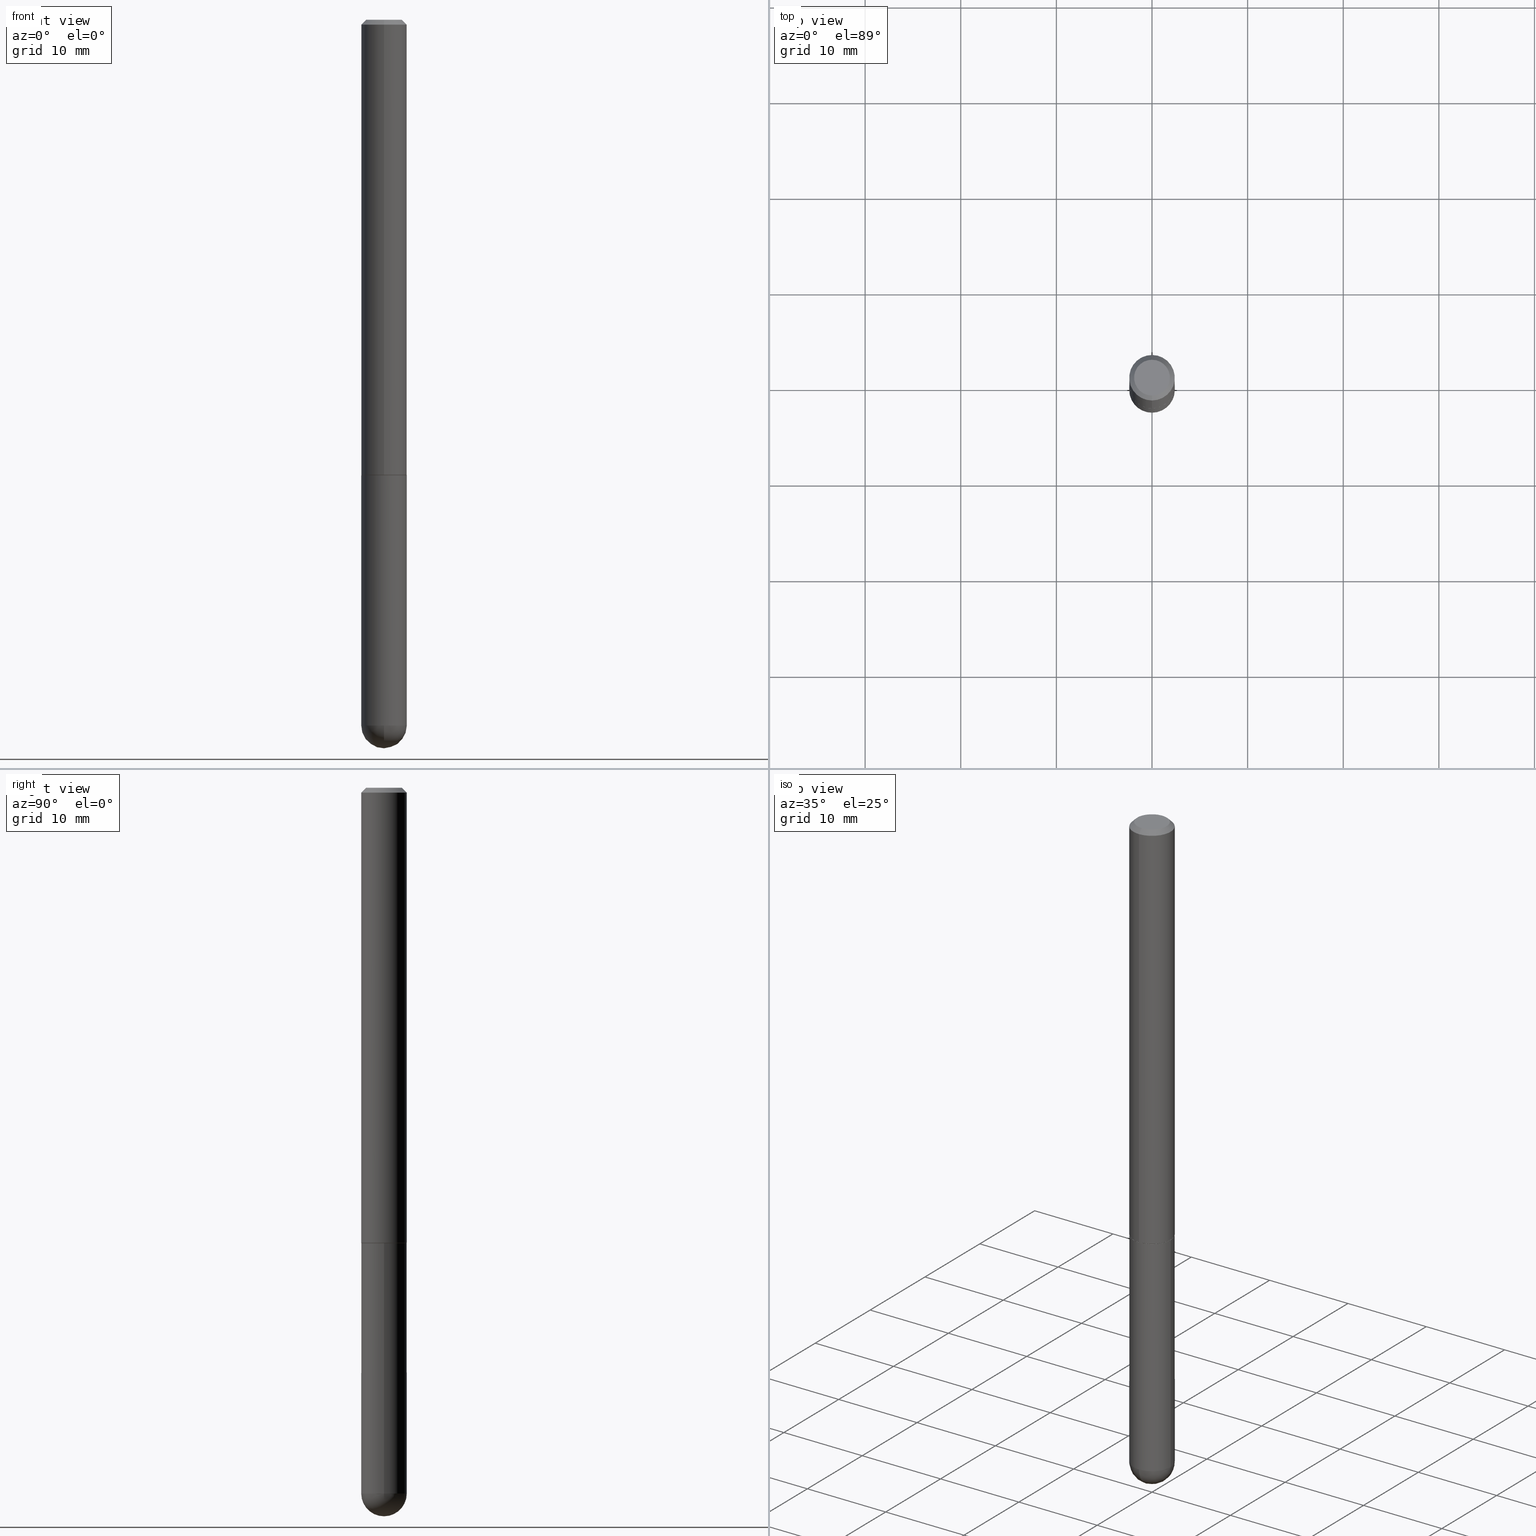
[diagram: canonical four-view strip — front | top / right | iso, engineering-drawing reading convention]
A machine part, canonical four-view strip (front | top / right | iso — engineering-drawing reading convention). The complete STEP part file that produces these views, byte-faithful:
ISO-10303-21;
HEADER;
FILE_DESCRIPTION (( 'STEP AP203' ),
    '1' );
FILE_NAME ('31969.STEP',
    '2024-02-21T17:21:11',
    ( '' ),
    ( '' ),
    'SwSTEP 2.0',
    'SolidWorks 2023',
    '' );
FILE_SCHEMA (( 'CONFIG_CONTROL_DESIGN' ));
ENDSEC;

DATA;
#1 = VERTEX_POINT ( 'NONE', #347 ) ;
#2 = DATE_AND_TIME ( #312, #263 ) ;
#3 = EDGE_LOOP ( 'NONE', ( #245, #236, #207, #387 ) ) ;
#4 = DESIGN_CONTEXT ( 'detailed design', #25, 'design' ) ;
#5 = PERSON_AND_ORGANIZATION ( #257, #300 ) ;
#6 = ORIENTED_EDGE ( 'NONE', *, *, #217, .F. ) ;
#7 = CARTESIAN_POINT ( 'NONE',  ( -6.431716872910807882E-16, -0.09375000000000011102, -0.01999999999999968817 ) ) ;
#8 = SECURITY_CLASSIFICATION_LEVEL ( 'unclassified' ) ;
#9 = ORIENTED_EDGE ( 'NONE', *, *, #269, .T. ) ;
#10 = CIRCLE ( 'NONE', #63, 0.07375000000000016265 ) ;
#11 = CIRCLE ( 'NONE', #394, 0.09375000000000024980 ) ;
#12 = CARTESIAN_POINT ( 'NONE',  ( 7.107143717975553234E-29, -1.014711764101289221E-14, -2.906250000000000000 ) ) ;
#13 = APPROVAL_ROLE ( '' ) ;
#14 = ORIENTED_EDGE ( 'NONE', *, *, #82, .T. ) ;
#15 = CARTESIAN_POINT ( 'NONE',  ( 4.585254011597131119E-29, -6.546527510330898707E-15, -1.875000000000000000 ) ) ;
#16 = CARTESIAN_POINT ( 'NONE',  ( 4.892014791988263253E-31, -6.981420095164085175E-17, -0.02000000000000001776 ) ) ;
#17 = ADVANCED_FACE ( 'NONE', ( #60 ), #179, .T. ) ;
#18 = CIRCLE ( 'NONE', #358, 0.09375000000000026368 ) ;
#19 = DIRECTION ( 'NONE',  ( 2.446007395994129455E-29, -3.490710047582039432E-15, -1.000000000000000000 ) ) ;
#20 = EDGE_CURVE ( 'NONE', #38, #144, #151, .T. ) ;
#21 = DIRECTION ( 'NONE',  ( -1.000000000000000000, 6.982962677686265133E-15, -4.883557194083112901E-29 ) ) ;
#22 = DIRECTION ( 'NONE',  ( -2.446007395994129735E-29, 3.490710047582039432E-15, 1.000000000000000000 ) ) ;
#23 = DIRECTION ( 'NONE',  ( 1.000000000000000000, -6.982962677686265922E-15, 4.883557194083112340E-29 ) ) ;
#24 = AXIS2_PLACEMENT_3D ( 'NONE', #362, #182, #57 ) ;
#25 = APPLICATION_CONTEXT ( 'configuration controlled 3d designs of mechanical parts and assemblies' ) ;
#26 = ORIENTED_EDGE ( 'NONE', *, *, #37, .T. ) ;
#27 =( NAMED_UNIT ( * ) SI_UNIT ( $, .STERADIAN. ) SOLID_ANGLE_UNIT ( ) );
#28 = DIRECTION ( 'NONE',  ( -6.982962677686266711E-15, -1.000000000000000000, 3.505871591869136121E-15 ) ) ;
#29 = EDGE_LOOP ( 'NONE', ( #248, #162, #147, #380 ) ) ;
#30 = CARTESIAN_POINT ( 'NONE',  ( 6.546527510331333567E-16, 0.09374999999999346356, -1.875000000000000444 ) ) ;
#31 = ORIENTED_EDGE ( 'NONE', *, *, #241, .F. ) ;
#32 = COORDINATED_UNIVERSAL_TIME_OFFSET ( 5, 0, .BEHIND. ) ;
#33 = AXIS2_PLACEMENT_3D ( 'NONE', #84, #252, #119 ) ;
#34 = AXIS2_PLACEMENT_3D ( 'NONE', #407, #204, #76 ) ;
#35 = CARTESIAN_POINT ( 'NONE',  ( 7.107143717975553234E-29, -1.014711764101289221E-14, -2.906250000000000000 ) ) ;
#36 = COORDINATED_UNIVERSAL_TIME_OFFSET ( 5, 0, .BEHIND. ) ;
#37 = EDGE_CURVE ( 'NONE', #283, #98, #10, .T. ) ;
#38 = VERTEX_POINT ( 'NONE', #351 ) ;
#39 = CARTESIAN_POINT ( 'NONE',  ( 4.585254011597131119E-29, -6.546527510330898707E-15, -1.875000000000000000 ) ) ;
#40 = APPROVAL_STATUS ( 'not_yet_approved' ) ;
#41 = DIRECTION ( 'NONE',  ( -2.446007395994129455E-29, 3.490710047582039432E-15, 1.000000000000000000 ) ) ;
#42 = ORIENTED_EDGE ( 'NONE', *, *, #100, .F. ) ;
#43 = CARTESIAN_POINT ( 'NONE',  ( 5.848231242562257836E-16, 0.07375000000000016265, -3.556725360119918947E-16 ) ) ;
#44 = EDGE_CURVE ( 'NONE', #124, #187, #64, .T. ) ;
#45 = LINE ( 'NONE', #200, #188 ) ;
#46 = DIRECTION ( 'NONE',  ( -2.446007395994129455E-29, 3.490710047582039432E-15, 1.000000000000000000 ) ) ;
#47 = VECTOR ( 'NONE', #22, 39.37007874015748143 ) ;
#48 = ADVANCED_FACE ( 'NONE', ( #141 ), #274, .T. ) ;
#49 =( GEOMETRIC_REPRESENTATION_CONTEXT ( 3 ) GLOBAL_UNCERTAINTY_ASSIGNED_CONTEXT ( ( #315 ) ) GLOBAL_UNIT_ASSIGNED_CONTEXT ( ( #53, #404, #27 ) ) REPRESENTATION_CONTEXT ( 'NONE', 'WORKASPACE' ) );
#50 = CARTESIAN_POINT ( 'NONE',  ( 6.776023940061668108E-29, -1.062130000915294250E-14, -2.906250000000000000 ) ) ;
#51 = DIRECTION ( 'NONE',  ( 2.446007395994129455E-29, -3.490710047582039432E-15, -1.000000000000000000 ) ) ;
#52 = ORIENTED_EDGE ( 'NONE', *, *, #105, .T. ) ;
#53 =( CONVERSION_BASED_UNIT ( 'INCH', #176 ) LENGTH_UNIT ( ) NAMED_UNIT ( #75 ) );
#54 = CIRCLE ( 'NONE', #350, 0.09274999999999999911 ) ;
#55 = CC_DESIGN_PERSON_AND_ORGANIZATION_ASSIGNMENT ( #155, #320, ( #335 ) ) ;
#56 = LOCAL_TIME ( 12, 21, 11.00000000000000000, #88 ) ;
#57 = DIRECTION ( 'NONE',  ( -6.982962677686265922E-15, -1.000000000000000000, 3.490710047582039432E-15 ) ) ;
#58 = VERTEX_POINT ( 'NONE', #228 ) ;
#59 = ORIENTED_EDGE ( 'NONE', *, *, #37, .F. ) ;
#60 = FACE_OUTER_BOUND ( 'NONE', #93, .T. ) ;
#61 = CALENDAR_DATE ( 2024, 21, 2 ) ;
#62 = EDGE_LOOP ( 'NONE', ( #378, #308 ) ) ;
#63 = AXIS2_PLACEMENT_3D ( 'NONE', #343, #218, #210 ) ;
#64 = LINE ( 'NONE', #304, #47 ) ;
#65 = ORIENTED_EDGE ( 'NONE', *, *, #293, .F. ) ;
#66 = DIRECTION ( 'NONE',  ( 1.000000000000000000, -6.982962677686263555E-15, 0.000000000000000000 ) ) ;
#67 = PERSON_AND_ORGANIZATION_ROLE ( 'design_owner' ) ;
#68 = DIRECTION ( 'NONE',  ( -2.446007395994129455E-29, 3.490710047582039432E-15, 1.000000000000000000 ) ) ;
#69 = ADVANCED_FACE ( 'NONE', ( #195 ), #136, .T. ) ;
#70 = AXIS2_PLACEMENT_3D ( 'NONE', #184, #120, #242 ) ;
#71 = DIRECTION ( 'NONE',  ( -7.105427357601001070E-15, -1.000000000000000000, 0.000000000000000000 ) ) ;
#72 = DIRECTION ( 'NONE',  ( -6.982962677686266711E-15, -1.000000000000000000, 3.505871591869136121E-15 ) ) ;
#73 = EDGE_CURVE ( 'NONE', #283, #159, #45, .T. ) ;
#74 = CIRCLE ( 'NONE', #34, 0.07375000000000016265 ) ;
#75 = DIMENSIONAL_EXPONENTS ( 1.000000000000000000, 0.000000000000000000, 0.000000000000000000, 0.000000000000000000, 0.000000000000000000, 0.000000000000000000, 0.000000000000000000 ) ;
#76 = DIRECTION ( 'NONE',  ( -6.982962677686265922E-15, -1.000000000000000000, 3.490710047582040221E-15 ) ) ;
#77 = APPROVAL ( #190, 'UNSPECIFIED' ) ;
#78 = CARTESIAN_POINT ( 'NONE',  ( 7.107143717975553234E-29, -1.014711764101289221E-14, -2.906250000000000000 ) ) ;
#79 = CARTESIAN_POINT ( 'NONE',  ( 5.149934974793632743E-16, 0.07375000000000016265, -3.065562010105839588E-16 ) ) ;
#80 = DIRECTION ( 'NONE',  ( 6.982962677686266711E-15, 1.000000000000000000, -3.505871591869136121E-15 ) ) ;
#81 = VERTEX_POINT ( 'NONE', #104 ) ;
#82 = EDGE_CURVE ( 'NONE', #183, #292, #18, .T. ) ;
#83 = CARTESIAN_POINT ( 'NONE',  ( -0.09374999999999998612, 6.661338147750938256E-16, -4.611501647113973295E-30 ) ) ;
#84 = CARTESIAN_POINT ( 'NONE',  ( 6.776023940061668108E-29, -1.062130000915294250E-14, -2.906250000000000000 ) ) ;
#85 = AXIS2_PLACEMENT_3D ( 'NONE', #78, #327, #391 ) ;
#86 = CARTESIAN_POINT ( 'NONE',  ( 6.590283874175386700E-16, 0.09274999999999346267, -1.875000000000000444 ) ) ;
#87 = ORIENTED_EDGE ( 'NONE', *, *, #20, .T. ) ;
#88 = COORDINATED_UNIVERSAL_TIME_OFFSET ( 5, 0, .BEHIND. ) ;
#89 = ORIENTED_EDGE ( 'NONE', *, *, #322, .F. ) ;
#90 = PERSON_AND_ORGANIZATION ( #257, #300 ) ;
#91 = VERTEX_POINT ( 'NONE', #288 ) ;
#92 = APPROVAL_DATE_TIME ( #390, #355 ) ;
#93 = EDGE_LOOP ( 'NONE', ( #214, #382, #89, #31 ) ) ;
#94 = VECTOR ( 'NONE', #268, 39.37007874015748143 ) ;
#95 = APPROVAL_PERSON_ORGANIZATION ( #90, #323, #316 ) ;
#96 = CARTESIAN_POINT ( 'NONE',  ( 6.546527510330881944E-16, 0.09374999999999997224, -0.02000000000000034736 ) ) ;
#97 = SHAPE_DEFINITION_REPRESENTATION ( #109, #369 ) ;
#98 = VERTEX_POINT ( 'NONE', #43 ) ;
#99 = DIRECTION ( 'NONE',  ( -6.982962677686265922E-15, -1.000000000000000000, 2.945388672414299892E-15 ) ) ;
#100 = EDGE_CURVE ( 'NONE', #159, #187, #234, .T. ) ;
#101 = DIRECTION ( 'NONE',  ( -2.446007395994129455E-29, 3.490710047582039432E-15, 1.000000000000000000 ) ) ;
#102 = CARTESIAN_POINT ( 'NONE',  ( -6.476697883553553415E-16, -0.09275000000000654943, -1.874999999999999778 ) ) ;
#103 = LOCAL_TIME ( 12, 21, 11.00000000000000000, #348 ) ;
#104 = CARTESIAN_POINT ( 'NONE',  ( -0.09375000000000001388, -7.680688760896801533E-15, -1.875000000000000000 ) ) ;
#105 = EDGE_CURVE ( 'NONE', #1, #290, #349, .T. ) ;
#106 = CARTESIAN_POINT ( 'NONE',  ( 7.009295232622052523E-29, -1.094288585279848383E-14, -3.000000000000000444 ) ) ;
#107 = AXIS2_PLACEMENT_3D ( 'NONE', #389, #229, #360 ) ;
#108 = VECTOR ( 'NONE', #280, 39.37007874015748143 ) ;
#109 = PRODUCT_DEFINITION_SHAPE ( 'NONE', 'NONE',  #203 ) ;
#110 = EDGE_CURVE ( 'NONE', #81, #91, #272, .T. ) ;
#111 = DIRECTION ( 'NONE',  ( 2.438088387897960049E-29, -3.491481338843145188E-15, -1.000000000000000000 ) ) ;
#112 = MECHANICAL_CONTEXT ( 'NONE', #265, 'mechanical' ) ;
#113 = CONICAL_SURFACE ( 'NONE', #273, 0.09375000000000004163, 0.7853981633974471688 ) ;
#114 = DIRECTION ( 'NONE',  ( 1.000000000000000000, -6.982962677686266711E-15, 4.876176775795935793E-29 ) ) ;
#115 = ADVANCED_FACE ( 'NONE', ( #199 ), #329, .T. ) ;
#116 = ORIENTED_EDGE ( 'NONE', *, *, #160, .F. ) ;
#117 = FACE_OUTER_BOUND ( 'NONE', #62, .T. ) ;
#118 = DIRECTION ( 'NONE',  ( -6.982962677686265922E-15, -1.000000000000000000, 2.945388672414299892E-15 ) ) ;
#119 = DIRECTION ( 'NONE',  ( 6.982962677686265133E-15, 1.000000000000000000, -5.827942386483744967E-15 ) ) ;
#120 = DIRECTION ( 'NONE',  ( 0.000000000000000000, 0.000000000000000000, 1.000000000000000000 ) ) ;
#121 = CARTESIAN_POINT ( 'NONE',  ( -6.476697883553553415E-16, -0.09275000000000654943, -1.874999999999999778 ) ) ;
#122 = ORIENTED_EDGE ( 'NONE', *, *, #368, .F. ) ;
#123 = APPROVAL_PERSON_ORGANIZATION ( #196, #77, #284 ) ;
#124 = VERTEX_POINT ( 'NONE', #169 ) ;
#125 = CALENDAR_DATE ( 2024, 21, 2 ) ;
#126 = EDGE_LOOP ( 'NONE', ( #59, #345, #353, #287 ) ) ;
#127 = FACE_OUTER_BOUND ( 'NONE', #154, .T. ) ;
#128 = DATE_AND_TIME ( #289, #246 ) ;
#129 = ORIENTED_EDGE ( 'NONE', *, *, #269, .F. ) ;
#130 = CC_DESIGN_PERSON_AND_ORGANIZATION_ASSIGNMENT ( #303, #67, ( #201 ) ) ;
#131 = CARTESIAN_POINT ( 'NONE',  ( 4.586263867488992587E-29, -6.545081339216325069E-15, -1.875000000000000000 ) ) ;
#132 = DIRECTION ( 'NONE',  ( 1.000000000000000000, -6.982962677686261189E-15, 0.000000000000000000 ) ) ;
#133 = DIRECTION ( 'NONE',  ( -2.445468806185136597E-29, 3.491481338843145583E-15, 1.000000000000000000 ) ) ;
#134 = CIRCLE ( 'NONE', #180, 0.09375000000000024980 ) ;
#135 = CC_DESIGN_SECURITY_CLASSIFICATION ( #375, ( #335 ) ) ;
#136 = CYLINDRICAL_SURFACE ( 'NONE', #107, 0.09375000000000013878 ) ;
#137 = CIRCLE ( 'NONE', #85, 0.09374999999999998612 ) ;
#138 = CC_DESIGN_APPROVAL ( #323, ( #375 ) ) ;
#139 = ADVANCED_FACE ( 'NONE', ( #198 ), #152, .T. ) ;
#140 = CC_DESIGN_PERSON_AND_ORGANIZATION_ASSIGNMENT ( #250, #148, ( #375 ) ) ;
#141 = FACE_OUTER_BOUND ( 'NONE', #310, .T. ) ;
#142 = AXIS2_PLACEMENT_3D ( 'NONE', #30, #111, #344 ) ;
#143 = DIRECTION ( 'NONE',  ( 6.982962677686265133E-15, 1.000000000000000000, -5.827942386483744967E-15 ) ) ;
#144 = VERTEX_POINT ( 'NONE', #328 ) ;
#145 = DIRECTION ( 'NONE',  ( 6.982962677686265922E-15, 1.000000000000000000, -3.490710047582039432E-15 ) ) ;
#146 = CARTESIAN_POINT ( 'NONE',  ( -6.661338147750251947E-16, -0.09375000000001050549, -2.906249999999999556 ) ) ;
#147 = ORIENTED_EDGE ( 'NONE', *, *, #231, .T. ) ;
#148 = PERSON_AND_ORGANIZATION_ROLE ( 'classification_officer' ) ;
#149 = ORIENTED_EDGE ( 'NONE', *, *, #73, .F. ) ;
#150 = ADVANCED_FACE ( 'NONE', ( #317 ), #232, .T. ) ;
#151 = CIRCLE ( 'NONE', #330, 0.09374999999999998612 ) ;
#152 = CONICAL_SURFACE ( 'NONE', #171, 0.09274999999999999911, 0.7853981633975336552 ) ;
#153 = PERSON_AND_ORGANIZATION_ROLE ( 'creator' ) ;
#154 = EDGE_LOOP ( 'NONE', ( #403, #52, #373, #338 ) ) ;
#155 = PERSON_AND_ORGANIZATION ( #257, #300 ) ;
#156 = ORIENTED_EDGE ( 'NONE', *, *, #105, .F. ) ;
#157 = CARTESIAN_POINT ( 'NONE',  ( 0.000000000000000000, 0.000000000000000000, 0.000000000000000000 ) ) ;
#158 = COORDINATED_UNIVERSAL_TIME_OFFSET ( 5, 0, .BEHIND. ) ;
#159 = VERTEX_POINT ( 'NONE', #7 ) ;
#160 = EDGE_CURVE ( 'NONE', #144, #292, #402, .T. ) ;
#161 = DIRECTION ( 'NONE',  ( -4.937700262164969294E-15, -0.7071067811866054154, 0.7071067811864896191 ) ) ;
#162 = ORIENTED_EDGE ( 'NONE', *, *, #213, .T. ) ;
#163 = AXIS2_PLACEMENT_3D ( 'NONE', #131, #68, #99 ) ;
#164 = CIRCLE ( 'NONE', #331, 0.09374999999999998612 ) ;
#165 = CARTESIAN_POINT ( 'NONE',  ( 0.000000000000000000, 0.000000000000000000, 0.000000000000000000 ) ) ;
#166 = EDGE_LOOP ( 'NONE', ( #281, #170, #42, #370 ) ) ;
#167 = PLANE ( 'NONE',  #24 ) ;
#168 = DIRECTION ( 'NONE',  ( -2.446007395994129455E-29, 3.490710047582039432E-15, 1.000000000000000000 ) ) ;
#169 = CARTESIAN_POINT ( 'NONE',  ( 6.661338147751182803E-16, 0.09374999999999368561, -1.874000000000000332 ) ) ;
#170 = ORIENTED_EDGE ( 'NONE', *, *, #44, .T. ) ;
#171 = AXIS2_PLACEMENT_3D ( 'NONE', #361, #393, #392 ) ;
#172 = CC_DESIGN_DATE_AND_TIME_ASSIGNMENT ( #379, #216, ( #375 ) ) ;
#173 = CIRCLE ( 'NONE', #411, 0.09375000000000004163 ) ;
#174 = DIRECTION ( 'NONE',  ( 1.000000000000000000, -6.982962677686263555E-15, 0.000000000000000000 ) ) ;
#175 = CC_DESIGN_DATE_AND_TIME_ASSIGNMENT ( #247, #352, ( #203 ) ) ;
#176 = LENGTH_MEASURE_WITH_UNIT ( LENGTH_MEASURE( 0.02539999999999999897 ), #364 );
#177 = CARTESIAN_POINT ( 'NONE',  ( 7.107143717975553234E-29, -1.014711764101289221E-14, -2.906250000000000000 ) ) ;
#178 = CLOSED_SHELL ( 'NONE', ( #139, #115, #337, #150, #69, #185, #260, #299 ) ) ;
#179 = SPHERICAL_SURFACE ( 'NONE', #33, 0.09375000000000026368 ) ;
#180 = AXIS2_PLACEMENT_3D ( 'NONE', #319, #41, #294 ) ;
#181 = ORIENTED_EDGE ( 'NONE', *, *, #20, .F. ) ;
#182 = DIRECTION ( 'NONE',  ( -2.446007395994129174E-29, 3.490710047582039432E-15, 1.000000000000000000 ) ) ;
#183 = VERTEX_POINT ( 'NONE', #106 ) ;
#184 = CARTESIAN_POINT ( 'NONE',  ( 0.000000000000000000, 0.000000000000000000, 0.000000000000000000 ) ) ;
#185 = ADVANCED_FACE ( 'NONE', ( #127 ), #219, .T. ) ;
#186 = PRODUCT_RELATED_PRODUCT_CATEGORY ( 'detail', '', ( #201 ) ) ;
#187 = VERTEX_POINT ( 'NONE', #385 ) ;
#188 = VECTOR ( 'NONE', #359, 39.37007874015748143 ) ;
#189 = AXIS2_PLACEMENT_3D ( 'NONE', #165, #46, #261 ) ;
#190 = APPROVAL_STATUS ( 'not_yet_approved' ) ;
#191 = ORIENTED_EDGE ( 'NONE', *, *, #194, .T. ) ;
#192 = DIRECTION ( 'NONE',  ( 1.000000000000000000, -6.982962677686261189E-15, 0.000000000000000000 ) ) ;
#193 = APPROVAL_DATE_TIME ( #2, #77 ) ;
#194 = EDGE_CURVE ( 'NONE', #98, #187, #356, .T. ) ;
#195 = FACE_OUTER_BOUND ( 'NONE', #29, .T. ) ;
#196 = PERSON_AND_ORGANIZATION ( #257, #300 ) ;
#197 = ORIENTED_EDGE ( 'NONE', *, *, #110, .F. ) ;
#198 = FACE_OUTER_BOUND ( 'NONE', #3, .T. ) ;
#199 = FACE_OUTER_BOUND ( 'NONE', #166, .T. ) ;
#200 = CARTESIAN_POINT ( 'NONE',  ( -6.431716872910807882E-16, -0.09375000000000011102, -0.01999999999999968817 ) ) ;
#201 = PRODUCT ( '31969', '31969', '', ( #112 ) ) ;
#202 = AXIS2_PLACEMENT_3D ( 'NONE', #224, #168, #254 ) ;
#203 = PRODUCT_DEFINITION ( 'UNKNOWN', '', #335, #4 ) ;
#204 = DIRECTION ( 'NONE',  ( -2.446007395994129455E-29, 3.490710047582039432E-15, 1.000000000000000000 ) ) ;
#205 = VECTOR ( 'NONE', #208, 39.37007874015748143 ) ;
#206 = LINE ( 'NONE', #271, #94 ) ;
#207 = ORIENTED_EDGE ( 'NONE', *, *, #251, .F. ) ;
#208 = DIRECTION ( 'NONE',  ( -2.445468806185136877E-29, 3.491481338843145188E-15, 1.000000000000000000 ) ) ;
#209 = AXIS2_PLACEMENT_3D ( 'NONE', #39, #133, #192 ) ;
#210 = DIRECTION ( 'NONE',  ( -6.982962677686265922E-15, -1.000000000000000000, 3.490710047582040221E-15 ) ) ;
#211 = AXIS2_PLACEMENT_3D ( 'NONE', #15, #291, #132 ) ;
#212 = DIRECTION ( 'NONE',  ( -2.445468806185136597E-29, 3.491481338843145583E-15, 1.000000000000000000 ) ) ;
#213 = EDGE_CURVE ( 'NONE', #124, #58, #134, .T. ) ;
#214 = ORIENTED_EDGE ( 'NONE', *, *, #82, .F. ) ;
#215 = EDGE_LOOP ( 'NONE', ( #149, #256, #191, #221 ) ) ;
#216 = DATE_TIME_ROLE ( 'classification_date' ) ;
#217 = EDGE_CURVE ( 'NONE', #91, #81, #235, .T. ) ;
#218 = DIRECTION ( 'NONE',  ( -2.446007395994129455E-29, 3.490710047582039432E-15, 1.000000000000000000 ) ) ;
#219 = CONICAL_SURFACE ( 'NONE', #202, 0.09274999999999999911, 0.7853981633975336552 ) ;
#220 = PERSON_AND_ORGANIZATION ( #257, #300 ) ;
#221 = ORIENTED_EDGE ( 'NONE', *, *, #276, .T. ) ;
#222 = MANIFOLD_SOLID_BREP ( 'Body-Move/Copy2[1]', #262 ) ;
#223 = DIRECTION ( 'NONE',  ( -2.445468806185136597E-29, 3.491481338843145583E-15, 1.000000000000000000 ) ) ;
#224 = CARTESIAN_POINT ( 'NONE',  ( 4.586263867488992587E-29, -6.545081339216325069E-15, -1.875000000000000000 ) ) ;
#225 = DIRECTION ( 'NONE',  ( -6.982962677686265133E-15, -1.000000000000000000, 2.913971193241872878E-15 ) ) ;
#226 = LINE ( 'NONE', #102, #307 ) ;
#227 = EDGE_CURVE ( 'NONE', #290, #58, #226, .T. ) ;
#228 = CARTESIAN_POINT ( 'NONE',  ( -6.546527510330432293E-16, -0.09375000000000678624, -1.873999999999999666 ) ) ;
#229 = DIRECTION ( 'NONE',  ( -2.446007395994129455E-29, 3.490710047582039432E-15, 1.000000000000000000 ) ) ;
#230 = DIRECTION ( 'NONE',  ( -2.446007395994129735E-29, 3.490710047582039432E-15, 1.000000000000000000 ) ) ;
#231 = EDGE_CURVE ( 'NONE', #58, #159, #332, .T. ) ;
#232 = CONICAL_SURFACE ( 'NONE', #244, 0.09375000000000004163, 0.7853981633974471688 ) ;
#233 = CYLINDRICAL_SURFACE ( 'NONE', #398, 0.09374999999999998612 ) ;
#234 = CIRCLE ( 'NONE', #340, 0.09375000000000004163 ) ;
#235 = CIRCLE ( 'NONE', #211, 0.09375000000000001388 ) ;
#236 = ORIENTED_EDGE ( 'NONE', *, *, #266, .T. ) ;
#237 = ORIENTED_EDGE ( 'NONE', *, *, #306, .F. ) ;
#238 = FACE_OUTER_BOUND ( 'NONE', #249, .T. ) ;
#239 = CARTESIAN_POINT ( 'NONE',  ( 0.09374999999999998612, -9.001475326704983750E-15, -2.906250000000000000 ) ) ;
#240 = ORIENTED_EDGE ( 'NONE', *, *, #322, .T. ) ;
#241 = EDGE_CURVE ( 'NONE', #292, #295, #137, .T. ) ;
#242 = DIRECTION ( 'NONE',  ( 1.000000000000000000, 0.000000000000000000, 0.000000000000000000 ) ) ;
#243 = CARTESIAN_POINT ( 'NONE',  ( 4.586263867488992587E-29, -6.545081339216325069E-15, -1.875000000000000000 ) ) ;
#244 = AXIS2_PLACEMENT_3D ( 'NONE', #297, #19, #354 ) ;
#245 = ORIENTED_EDGE ( 'NONE', *, *, #293, .T. ) ;
#246 = LOCAL_TIME ( 12, 21, 11.00000000000000000, #158 ) ;
#247 = DATE_AND_TIME ( #125, #103 ) ;
#248 = ORIENTED_EDGE ( 'NONE', *, *, #44, .F. ) ;
#249 = EDGE_LOOP ( 'NONE', ( #237, #14, #116, #181 ) ) ;
#250 = PERSON_AND_ORGANIZATION ( #257, #300 ) ;
#251 = EDGE_CURVE ( 'NONE', #58, #124, #11, .T. ) ;
#252 = DIRECTION ( 'NONE',  ( -1.000000000000000000, 6.982962677686265133E-15, -4.883557194083112901E-29 ) ) ;
#253 = APPROVAL_STATUS ( 'not_yet_approved' ) ;
#254 = DIRECTION ( 'NONE',  ( -6.982962677686265922E-15, -1.000000000000000000, 2.945388672414299892E-15 ) ) ;
#255 = APPROVAL_DATE_TIME ( #128, #323 ) ;
#256 = ORIENTED_EDGE ( 'NONE', *, *, #301, .F. ) ;
#257 = PERSON ( 'UNSPECIFIED', 'UNSPECIFIED', 'UNSPECIFIED', ('UNSPECIFIED'), ('UNSPECIFIED'), ('UNSPECIFIED') ) ;
#258 = DIRECTION ( 'NONE',  ( 1.000000000000000000, -6.982962677686266711E-15, 4.876176775795935793E-29 ) ) ;
#259 = CARTESIAN_POINT ( 'NONE',  ( 6.776023940061668108E-29, -1.062130000915294250E-14, -2.906250000000000000 ) ) ;
#260 = ADVANCED_FACE ( 'NONE', ( #357 ), #167, .F. ) ;
#261 = DIRECTION ( 'NONE',  ( -6.982962677686266711E-15, -1.000000000000000000, 3.490710047582039826E-15 ) ) ;
#262 = CLOSED_SHELL ( 'NONE', ( #48, #410, #17, #377, #333 ) ) ;
#263 = LOCAL_TIME ( 12, 21, 11.00000000000000000, #36 ) ;
#264 = DIRECTION ( 'NONE',  ( -2.446007395994129455E-29, 3.490710047582039432E-15, 1.000000000000000000 ) ) ;
#265 = APPLICATION_CONTEXT ( 'configuration controlled 3d designs of mechanical parts and assemblies' ) ;
#266 = EDGE_CURVE ( 'NONE', #1, #124, #374, .T. ) ;
#267 = VECTOR ( 'NONE', #324, 39.37007874015748143 ) ;
#268 = DIRECTION ( 'NONE',  ( -2.445468806185136877E-29, 3.491481338843145188E-15, 1.000000000000000000 ) ) ;
#269 = EDGE_CURVE ( 'NONE', #144, #81, #408, .T. ) ;
#270 = CARTESIAN_POINT ( 'NONE',  ( -6.546527510330884902E-16, -0.09375000000000013878, 3.272540669608167268E-16 ) ) ;
#271 = CARTESIAN_POINT ( 'NONE',  ( 0.09374999999999998612, -6.546527510330874055E-16, 4.571415727308689105E-30 ) ) ;
#272 = CIRCLE ( 'NONE', #209, 0.09375000000000001388 ) ;
#273 = AXIS2_PLACEMENT_3D ( 'NONE', #371, #51, #80 ) ;
#274 = CYLINDRICAL_SURFACE ( 'NONE', #313, 0.09374999999999998612 ) ;
#275 = CARTESIAN_POINT ( 'NONE',  ( 6.776023940061668108E-29, -1.062130000915294250E-14, -2.906250000000000000 ) ) ;
#276 = EDGE_CURVE ( 'NONE', #187, #159, #173, .T. ) ;
#277 = DIRECTION ( 'NONE',  ( -2.446007395994129455E-29, 3.490710047582039432E-15, 1.000000000000000000 ) ) ;
#278 = DIRECTION ( 'NONE',  ( -2.445468806185136597E-29, 3.491481338843145583E-15, 1.000000000000000000 ) ) ;
#279 = DIRECTION ( 'NONE',  ( 2.446007395994129174E-29, -3.490710047582039432E-15, -1.000000000000000000 ) ) ;
#280 = DIRECTION ( 'NONE',  ( 5.024295867788490741E-15, 0.7071067811866103003, 0.7071067811864847341 ) ) ;
#281 = ORIENTED_EDGE ( 'NONE', *, *, #251, .T. ) ;
#282 = CC_DESIGN_APPROVAL ( #77, ( #203 ) ) ;
#283 = VERTEX_POINT ( 'NONE', #405 ) ;
#284 = APPROVAL_ROLE ( '' ) ;
#285 = DIRECTION ( 'NONE',  ( 1.000000000000000000, -6.982962677686263555E-15, 0.000000000000000000 ) ) ;
#286 = PERSON_AND_ORGANIZATION ( #257, #300 ) ;
#287 = ORIENTED_EDGE ( 'NONE', *, *, #194, .F. ) ;
#288 = CARTESIAN_POINT ( 'NONE',  ( 0.09375000000000001388, -7.201180261363985422E-15, -1.875000000000000000 ) ) ;
#289 = CALENDAR_DATE ( 2024, 21, 2 ) ;
#290 = VERTEX_POINT ( 'NONE', #121 ) ;
#291 = DIRECTION ( 'NONE',  ( -2.445468806185136597E-29, 3.491481338843145583E-15, 1.000000000000000000 ) ) ;
#292 = VERTEX_POINT ( 'NONE', #146 ) ;
#293 = EDGE_CURVE ( 'NONE', #290, #1, #54, .T. ) ;
#294 = DIRECTION ( 'NONE',  ( -6.982962677686265133E-15, -1.000000000000000000, 2.913971193241872878E-15 ) ) ;
#295 = VERTEX_POINT ( 'NONE', #239 ) ;
#296 = DIRECTION ( 'NONE',  ( -1.000000000000000000, 7.105427357601001070E-15, -4.926315508542082329E-29 ) ) ;
#297 = CARTESIAN_POINT ( 'NONE',  ( 4.892014791988263253E-31, -6.981420095164085175E-17, -0.02000000000000001776 ) ) ;
#298 = AXIS2_PLACEMENT_3D ( 'NONE', #79, #279, #145 ) ;
#299 = ADVANCED_FACE ( 'NONE', ( #372 ), #401, .F. ) ;
#300 = ORGANIZATION ( 'UNSPECIFIED', 'UNSPECIFIED', '' ) ;
#301 = EDGE_CURVE ( 'NONE', #98, #283, #74, .T. ) ;
#302 = CARTESIAN_POINT ( 'NONE',  ( 0.000000000000000000, 0.000000000000000000, 0.000000000000000000 ) ) ;
#303 = PERSON_AND_ORGANIZATION ( #257, #300 ) ;
#304 = CARTESIAN_POINT ( 'NONE',  ( 6.661338147750948117E-16, 0.09375000000000013878, -3.272540669608167268E-16 ) ) ;
#305 = SPHERICAL_SURFACE ( 'NONE', #384, 0.09375000000000026368 ) ;
#306 = EDGE_CURVE ( 'NONE', #183, #38, #326, .T. ) ;
#307 = VECTOR ( 'NONE', #161, 39.37007874015748143 ) ;
#308 = ORIENTED_EDGE ( 'NONE', *, *, #110, .T. ) ;
#309 = DIRECTION ( 'NONE',  ( -2.446007395994129455E-29, 3.490710047582039432E-15, 1.000000000000000000 ) ) ;
#310 = EDGE_LOOP ( 'NONE', ( #87, #9, #6, #122, #240 ) ) ;
#311 = ORIENTED_EDGE ( 'NONE', *, *, #368, .T. ) ;
#312 = CALENDAR_DATE ( 2024, 21, 2 ) ;
#313 = AXIS2_PLACEMENT_3D ( 'NONE', #157, #223, #258 ) ;
#314 = ORIENTED_EDGE ( 'NONE', *, *, #160, .T. ) ;
#315 = UNCERTAINTY_MEASURE_WITH_UNIT (LENGTH_MEASURE( 1.000000000000000082E-05 ), #53, 'distance_accuracy_value', 'NONE');
#316 = APPROVAL_ROLE ( '' ) ;
#317 = FACE_OUTER_BOUND ( 'NONE', #215, .T. ) ;
#318 = PERSON_AND_ORGANIZATION_ROLE ( 'design_supplier' ) ;
#319 = CARTESIAN_POINT ( 'NONE',  ( 4.583817860092998412E-29, -6.541590629168742306E-15, -1.874000000000000110 ) ) ;
#320 = PERSON_AND_ORGANIZATION_ROLE ( 'creator' ) ;
#321 = EDGE_LOOP ( 'NONE', ( #409, #26 ) ) ;
#322 = EDGE_CURVE ( 'NONE', #295, #38, #164, .T. ) ;
#323 = APPROVAL ( #40, 'UNSPECIFIED' ) ;
#324 = DIRECTION ( 'NONE',  ( 4.937700262164541731E-15, 0.7071067811865442421, -0.7071067811865507924 ) ) ;
#325 = AXIS2_PLACEMENT_3D ( 'NONE', #12, #395, #66 ) ;
#326 = CIRCLE ( 'NONE', #341, 0.09375000000000026368 ) ;
#327 = DIRECTION ( 'NONE',  ( -2.445468806185136597E-29, 3.491481338843145583E-15, 1.000000000000000000 ) ) ;
#328 = CARTESIAN_POINT ( 'NONE',  ( -0.09374999999999998612, -7.680688760896803110E-15, -2.906250000000000000 ) ) ;
#329 = CYLINDRICAL_SURFACE ( 'NONE', #189, 0.09375000000000013878 ) ;
#330 = AXIS2_PLACEMENT_3D ( 'NONE', #35, #278, #285 ) ;
#331 = AXIS2_PLACEMENT_3D ( 'NONE', #177, #212, #174 ) ;
#332 = LINE ( 'NONE', #270, #363 ) ;
#333 = ADVANCED_FACE ( 'NONE', ( #334 ), #233, .T. ) ;
#334 = FACE_OUTER_BOUND ( 'NONE', #376, .T. ) ;
#335 = PRODUCT_DEFINITION_FORMATION_WITH_SPECIFIED_SOURCE ( 'ANY', '', #201, .NOT_KNOWN. ) ;
#336 = DIRECTION ( 'NONE',  ( -2.445468806185136597E-29, 3.491481338843145583E-15, 1.000000000000000000 ) ) ;
#337 = ADVANCED_FACE ( 'NONE', ( #399 ), #113, .T. ) ;
#338 = ORIENTED_EDGE ( 'NONE', *, *, #213, .F. ) ;
#339 = PLANE ( 'NONE',  #142 ) ;
#340 = AXIS2_PLACEMENT_3D ( 'NONE', #16, #264, #72 ) ;
#341 = AXIS2_PLACEMENT_3D ( 'NONE', #275, #23, #365 ) ;
#342 = CARTESIAN_POINT ( 'NONE',  ( 4.892014791988263253E-31, -6.981420095164085175E-17, -0.02000000000000001776 ) ) ;
#343 = CARTESIAN_POINT ( 'NONE',  ( 2.402778373551383333E-45, -3.429017681796402204E-31, -9.823267000281589641E-17 ) ) ;
#344 = DIRECTION ( 'NONE',  ( -1.000000000000000000, 6.982962677686265922E-15, -4.876176775795935793E-29 ) ) ;
#345 = ORIENTED_EDGE ( 'NONE', *, *, #73, .T. ) ;
#346 = CC_DESIGN_PERSON_AND_ORGANIZATION_ASSIGNMENT ( #220, #153, ( #203 ) ) ;
#347 = CARTESIAN_POINT ( 'NONE',  ( 6.625811010963400616E-16, 0.09274999999999346267, -1.875000000000000444 ) ) ;
#348 = COORDINATED_UNIVERSAL_TIME_OFFSET ( 5, 0, .BEHIND. ) ;
#349 = CIRCLE ( 'NONE', #163, 0.09274999999999999911 ) ;
#350 = AXIS2_PLACEMENT_3D ( 'NONE', #243, #277, #118 ) ;
#351 = CARTESIAN_POINT ( 'NONE',  ( 6.546527510331577127E-16, 0.09374999999998974431, -2.906250000000000888 ) ) ;
#352 = DATE_TIME_ROLE ( 'creation_date' ) ;
#353 = ORIENTED_EDGE ( 'NONE', *, *, #100, .T. ) ;
#354 = DIRECTION ( 'NONE',  ( 6.982962677686266711E-15, 1.000000000000000000, -3.505871591869136121E-15 ) ) ;
#355 = APPROVAL ( #253, 'UNSPECIFIED' ) ;
#356 = LINE ( 'NONE', #96, #267 ) ;
#357 = FACE_OUTER_BOUND ( 'NONE', #396, .T. ) ;
#358 = AXIS2_PLACEMENT_3D ( 'NONE', #259, #296, #71 ) ;
#359 = DIRECTION ( 'NONE',  ( -4.851104656540957964E-15, -0.7071067811865491270, -0.7071067811865459074 ) ) ;
#360 = DIRECTION ( 'NONE',  ( -6.982962677686266711E-15, -1.000000000000000000, 3.490710047582039826E-15 ) ) ;
#361 = CARTESIAN_POINT ( 'NONE',  ( 4.586263867488992587E-29, -6.545081339216325069E-15, -1.875000000000000000 ) ) ;
#362 = CARTESIAN_POINT ( 'NONE',  ( 4.586263867488992587E-29, -6.545081339216325069E-15, -1.875000000000000000 ) ) ;
#363 = VECTOR ( 'NONE', #230, 39.37007874015748143 ) ;
#364 =( LENGTH_UNIT ( ) NAMED_UNIT ( * ) SI_UNIT ( $, .METRE. ) );
#365 = DIRECTION ( 'NONE',  ( 6.982962677686265133E-15, 1.000000000000000000, 0.000000000000000000 ) ) ;
#366 = APPROVAL_PERSON_ORGANIZATION ( #286, #355, #13 ) ;
#367 = LOCAL_TIME ( 12, 21, 11.00000000000000000, #32 ) ;
#368 = EDGE_CURVE ( 'NONE', #295, #91, #206, .T. ) ;
#369 = ADVANCED_BREP_SHAPE_REPRESENTATION ( '31969', ( #222, #388, #70 ), #49 ) ;
#370 = ORIENTED_EDGE ( 'NONE', *, *, #231, .F. ) ;
#371 = CARTESIAN_POINT ( 'NONE',  ( 4.892014791988263253E-31, -6.981420095164085175E-17, -0.02000000000000001776 ) ) ;
#372 = FACE_OUTER_BOUND ( 'NONE', #321, .T. ) ;
#373 = ORIENTED_EDGE ( 'NONE', *, *, #227, .T. ) ;
#374 = LINE ( 'NONE', #86, #108 ) ;
#375 = SECURITY_CLASSIFICATION ( '', '', #8 ) ;
#376 = EDGE_LOOP ( 'NONE', ( #129, #314, #406, #311, #197 ) ) ;
#377 = ADVANCED_FACE ( 'NONE', ( #117 ), #339, .F. ) ;
#378 = ORIENTED_EDGE ( 'NONE', *, *, #217, .T. ) ;
#379 = DATE_AND_TIME ( #386, #367 ) ;
#380 = ORIENTED_EDGE ( 'NONE', *, *, #276, .F. ) ;
#381 = APPLICATION_PROTOCOL_DEFINITION ( 'international standard', 'config_control_design', 1994, #25 ) ;
#382 = ORIENTED_EDGE ( 'NONE', *, *, #306, .T. ) ;
#383 = CARTESIAN_POINT ( 'NONE',  ( 4.583817860092998412E-29, -6.541590629168742306E-15, -1.874000000000000110 ) ) ;
#384 = AXIS2_PLACEMENT_3D ( 'NONE', #50, #21, #143 ) ;
#385 = CARTESIAN_POINT ( 'NONE',  ( 6.546527510330881944E-16, 0.09374999999999997224, -0.02000000000000034736 ) ) ;
#386 = CALENDAR_DATE ( 2024, 21, 2 ) ;
#387 = ORIENTED_EDGE ( 'NONE', *, *, #227, .F. ) ;
#388 = MANIFOLD_SOLID_BREP ( 'Body-Move/Copy2[2]', #178 ) ;
#389 = CARTESIAN_POINT ( 'NONE',  ( 0.000000000000000000, 0.000000000000000000, 0.000000000000000000 ) ) ;
#390 = DATE_AND_TIME ( #61, #56 ) ;
#391 = DIRECTION ( 'NONE',  ( 1.000000000000000000, -6.982962677686263555E-15, 0.000000000000000000 ) ) ;
#392 = DIRECTION ( 'NONE',  ( -6.982962677686265922E-15, -1.000000000000000000, 2.945388672414299892E-15 ) ) ;
#393 = DIRECTION ( 'NONE',  ( -2.446007395994129455E-29, 3.490710047582039432E-15, 1.000000000000000000 ) ) ;
#394 = AXIS2_PLACEMENT_3D ( 'NONE', #383, #101, #225 ) ;
#395 = DIRECTION ( 'NONE',  ( -2.445468806185136597E-29, 3.491481338843145583E-15, 1.000000000000000000 ) ) ;
#396 = EDGE_LOOP ( 'NONE', ( #65, #156 ) ) ;
#397 = CC_DESIGN_PERSON_AND_ORGANIZATION_ASSIGNMENT ( #5, #318, ( #335 ) ) ;
#398 = AXIS2_PLACEMENT_3D ( 'NONE', #302, #336, #114 ) ;
#399 = FACE_OUTER_BOUND ( 'NONE', #126, .T. ) ;
#400 = APPLICATION_PROTOCOL_DEFINITION ( 'international standard', 'config_control_design', 1994, #265 ) ;
#401 = PLANE ( 'NONE',  #298 ) ;
#402 = CIRCLE ( 'NONE', #325, 0.09374999999999998612 ) ;
#403 = ORIENTED_EDGE ( 'NONE', *, *, #266, .F. ) ;
#404 =( NAMED_UNIT ( * ) PLANE_ANGLE_UNIT ( ) SI_UNIT ( $, .RADIAN. ) );
#405 = CARTESIAN_POINT ( 'NONE',  ( -5.745667073133662456E-16, -0.07375000000000016265, 1.592071960063601265E-16 ) ) ;
#406 = ORIENTED_EDGE ( 'NONE', *, *, #241, .T. ) ;
#407 = CARTESIAN_POINT ( 'NONE',  ( 2.402778373551383333E-45, -3.429017681796402204E-31, -9.823267000281589641E-17 ) ) ;
#408 = LINE ( 'NONE', #83, #205 ) ;
#409 = ORIENTED_EDGE ( 'NONE', *, *, #301, .T. ) ;
#410 = ADVANCED_FACE ( 'NONE', ( #238 ), #305, .T. ) ;
#411 = AXIS2_PLACEMENT_3D ( 'NONE', #342, #309, #28 ) ;
#412 = CC_DESIGN_APPROVAL ( #355, ( #335 ) ) ;
ENDSEC;
END-ISO-10303-21;
